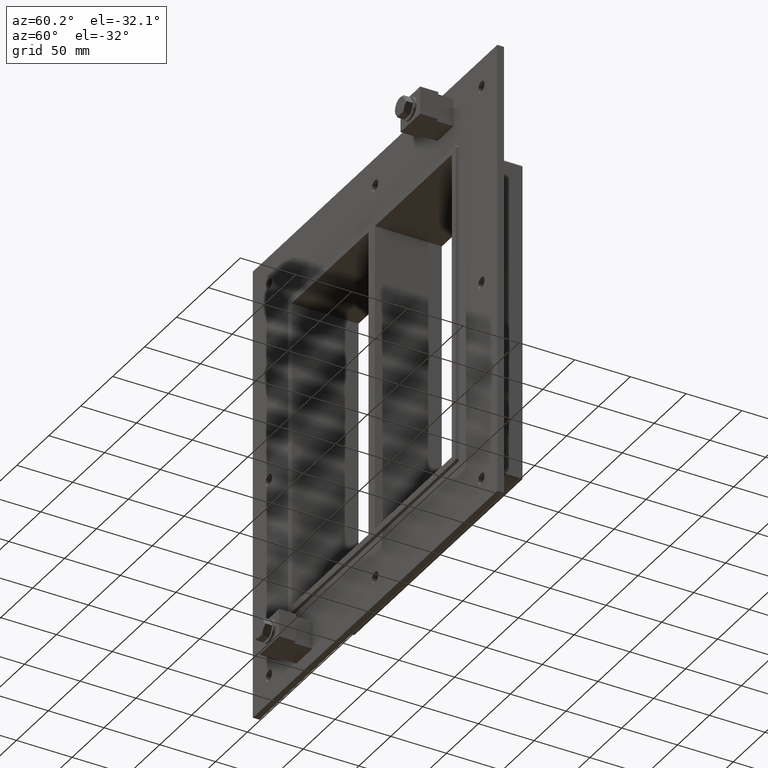
[diagram: clean part render]
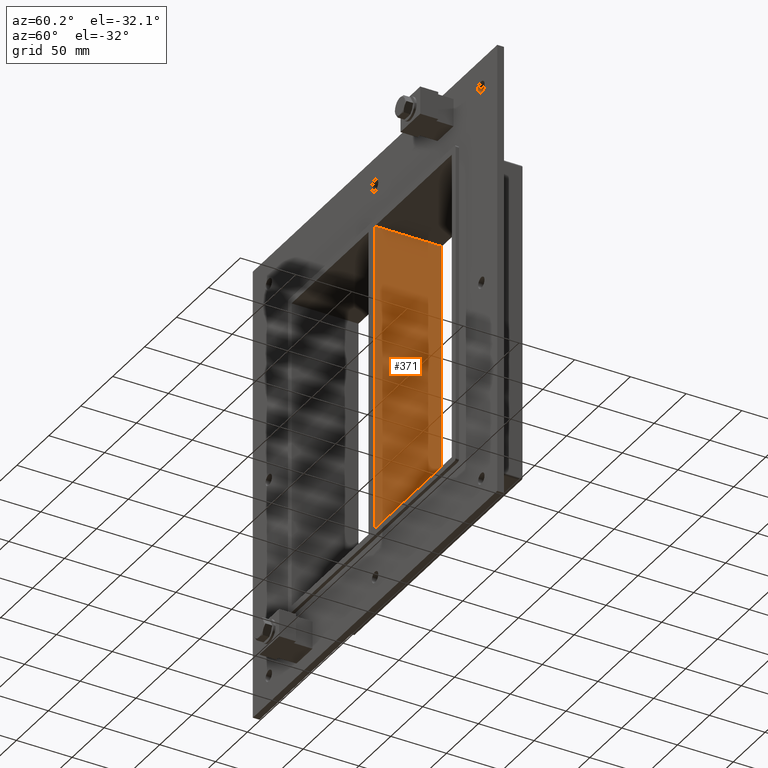
[diagram: same view with one face highlighted and labeled with its STEP entity id]
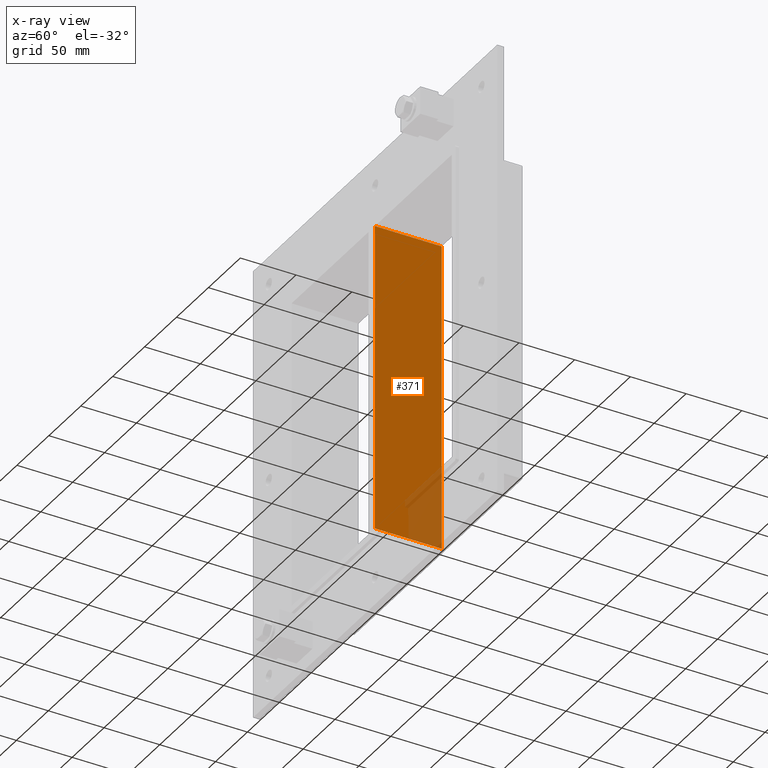
[diagram: x-ray of the same camera — body ghosted, the highlighted face saturated]
A machine part, auxiliary view. The second image highlights one B-rep face of the part: STEP entity #371.
The next image is the same camera in x-ray: the body ghosted, the highlighted face saturated — about 10% of this face is hidden behind the body in this view.
In plain terms, the highlighted planar face has unit normal (1, 0, 0).
Its self-contained STEP definition (entity closure, byte-faithful):
#332=CARTESIAN_POINT('',(5.0,-3.0,139.0));
#333=DIRECTION('',(1.0,0.0,0.0));
#334=DIRECTION('',(0.0,0.0,-1.0));
#335=AXIS2_PLACEMENT_3D('',#332,#333,#334);
#336=PLANE('',#335);
#337=CARTESIAN_POINT('',(5.0,-3.0,139.0));
#338=VERTEX_POINT('',#337);
#339=CARTESIAN_POINT('',(5.0,-3.0,-138.99999999998164));
#340=VERTEX_POINT('',#339);
#341=CARTESIAN_POINT('',(5.0,-3.0,139.0));
#342=DIRECTION('',(0.0,0.0,-1.0));
#343=VECTOR('',#342,277.99999999998164);
#344=LINE('',#341,#343);
#345=EDGE_CURVE('',#338,#340,#344,.T.);
#346=ORIENTED_EDGE('',*,*,#345,.T.);
#347=CARTESIAN_POINT('',(5.0,57.0,-138.99999999998164));
#348=VERTEX_POINT('',#347);
#349=CARTESIAN_POINT('',(5.0,57.000000000000007,-139.0));
#350=DIRECTION('',(0.0,-1.0,0.0));
#351=VECTOR('',#350,60.000000000000007);
#352=LINE('',#349,#351);
#353=EDGE_CURVE('',#348,#340,#352,.T.);
#354=ORIENTED_EDGE('',*,*,#353,.F.);
#355=CARTESIAN_POINT('',(5.0,57.0,139.0));
#356=VERTEX_POINT('',#355);
#357=CARTESIAN_POINT('',(5.0,57.0,139.0));
#358=DIRECTION('',(0.0,0.0,-1.0));
#359=VECTOR('',#358,277.99999999998164);
#360=LINE('',#357,#359);
#361=EDGE_CURVE('',#356,#348,#360,.T.);
#362=ORIENTED_EDGE('',*,*,#361,.F.);
#363=CARTESIAN_POINT('',(5.0,-3.0,139.0));
#364=DIRECTION('',(0.0,1.0,0.0));
#365=VECTOR('',#364,60.000000000000007);
#366=LINE('',#363,#365);
#367=EDGE_CURVE('',#338,#356,#366,.T.);
#368=ORIENTED_EDGE('',*,*,#367,.F.);
#369=EDGE_LOOP('',(#346,#354,#362,#368));
#370=FACE_OUTER_BOUND('',#369,.T.);
#371=ADVANCED_FACE('',(#370),#336,.T.);